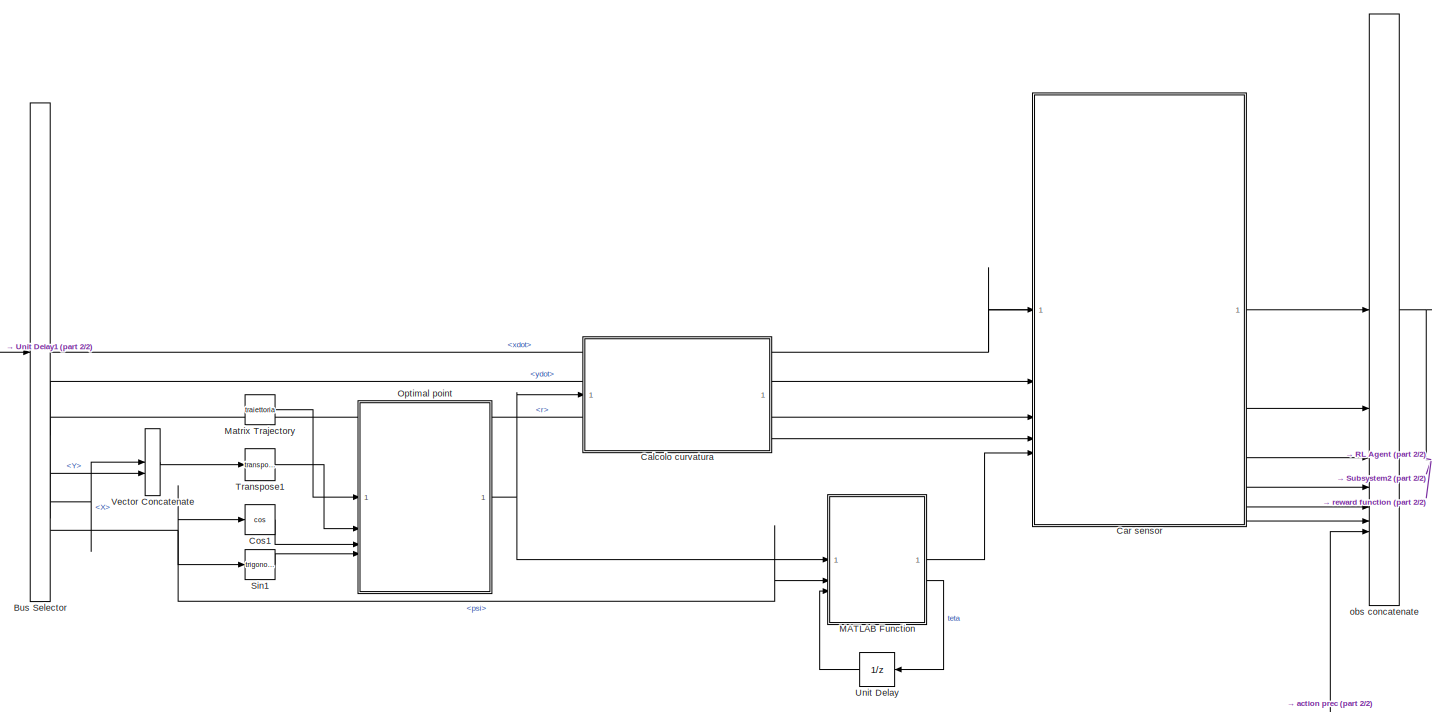
[diagram: root canvas - part 1/2, left side, full height]
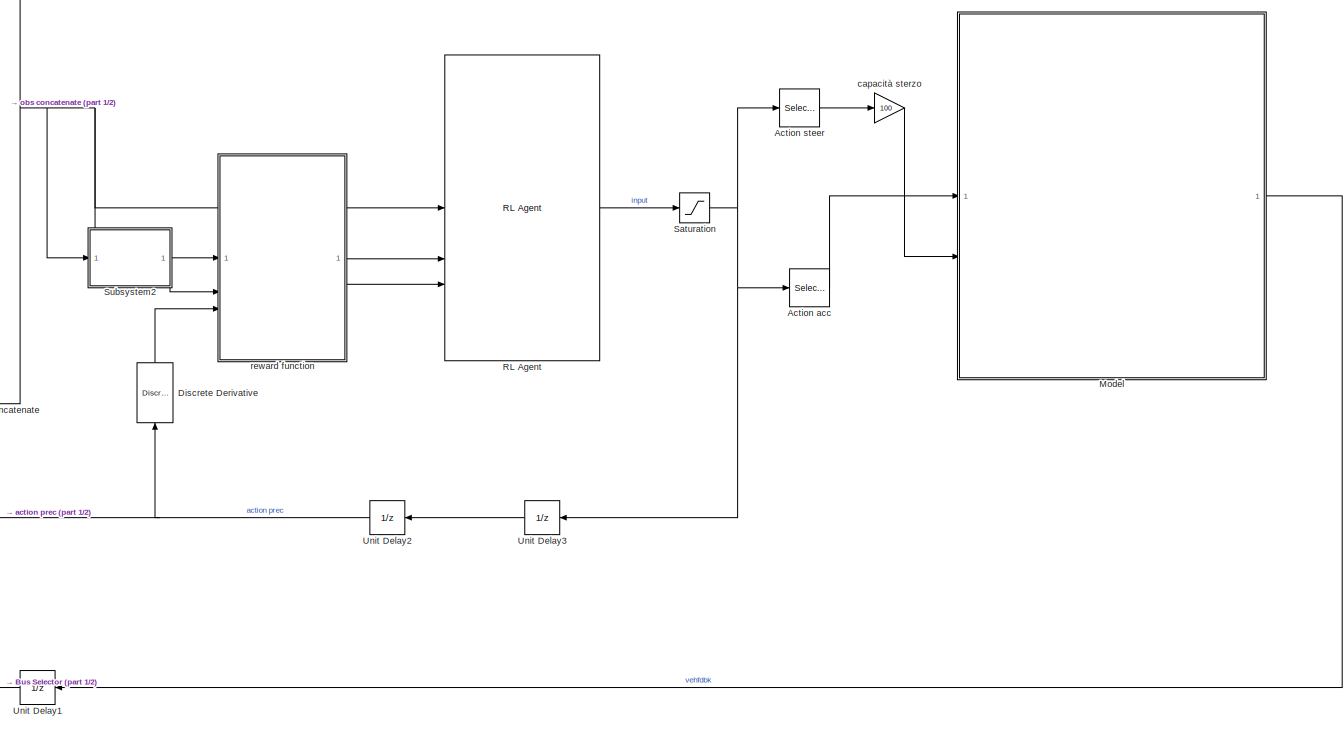
[diagram: root canvas - part 2/2, right side, full height]
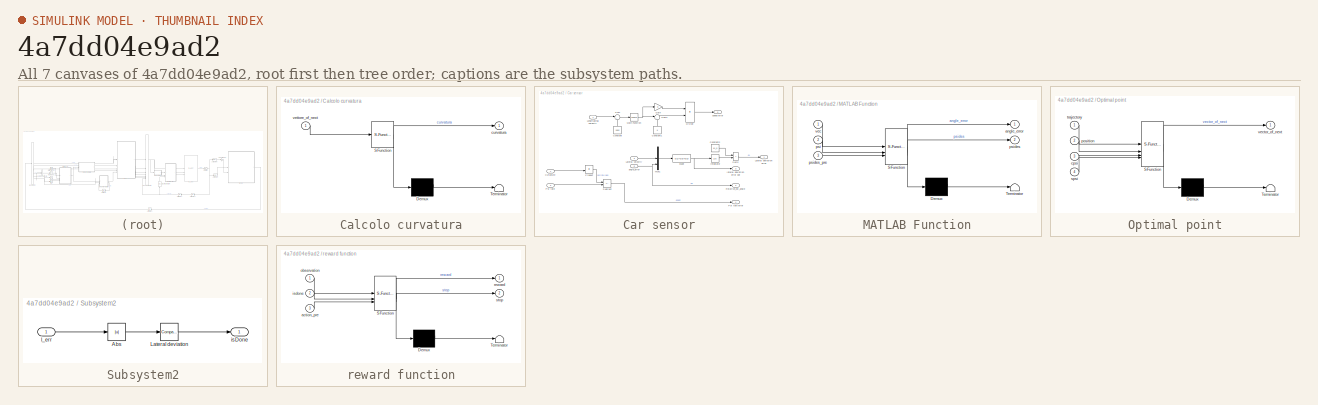
[diagram: thumbnail index - all 7 canvases of the model, root first then tree order]
MODEL slx_4a7dd04e9ad2
KIND model
CONFIG AbsTol = auto
CONFIG EnableMultiTasking = off
CONFIG FixedStep = auto
CONFIG MaxStep = auto
CONFIG MinStep = auto
CONFIG RelTol = 1e-3
CONFIG SampleTimeConstraint = Unconstrained
CONFIG SolverName = FixedStepAuto
CONFIG StartTime = 0.0
CONFIG StopTime = inf
BLOCK [Selector] Action acc
  IndexOptions = Index vector (dialog)
  Indices = 2
  InputPortWidth = 2
  OutputSizes = 1
BLOCK [Selector] Action steer
  IndexOptions = Index vector (dialog)
  Indices = 1
  InputPortWidth = 2
  OutputSizes = 1
BLOCK [BusSelector] Bus Selector
  OutputSignals = BdyFrm.Cg.Vel.xdot,BdyFrm.Cg.Vel.ydot,BdyFrm.Cg.AngVel.r,InertFrm.Cg.Disp.X,InertFrm.Cg.Disp.Y,InertFrm.Cg.Ang.psi
BLOCK [SubSystem] Calcolo curvatura
  ErrorFcn = Stateflow.Translate.translate
  LibrarySourceBlock = simulink/User-Defined\nFunctions/MATLAB Function
  PermitHierarchicalResolution = ExplicitOnly
  SFBlockType = MATLAB Function
  TreatAsAtomicUnit = on
BLOCK [Demux] Calcolo curvatura/ Demux 
  Outputs = 1
BLOCK [S-Function] Calcolo curvatura/ SFunction 
  EnableBusSupport = on
  FunctionName = sf_sfun
  PortCounts = [1 2]
  SFcnIsStateOwnerBlock = off
  SFunctionDeploymentMode = off
  Tag = Stateflow S-Function 7
BLOCK [Terminator] Calcolo curvatura/ Terminator 
BLOCK [Outport] Calcolo curvatura/curvatura
BLOCK [Inport] Calcolo curvatura/vettore_of_next
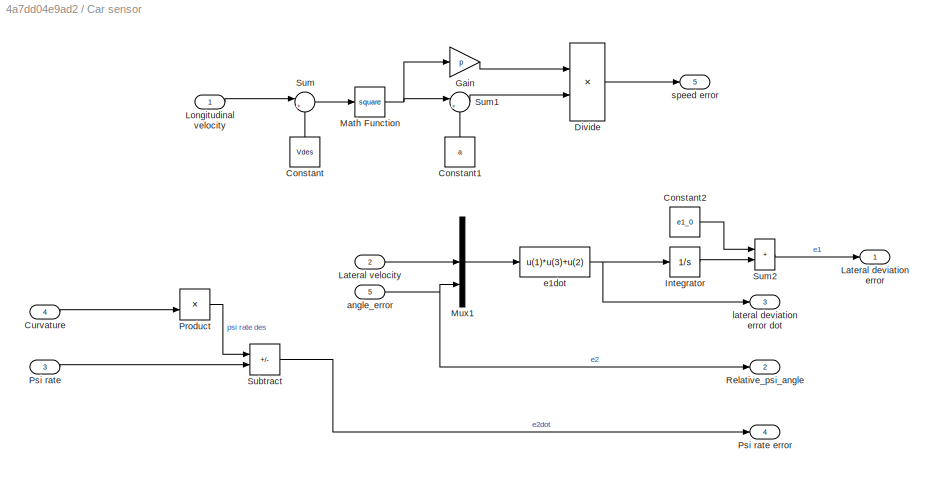
BLOCK [SubSystem] Car sensor
BLOCK [Constant] Car sensor/Constant
  NameLocation = right
  Value = Vdes
BLOCK [Constant] Car sensor/Constant1
  NameLocation = right
  Value = a
BLOCK [Constant] Car sensor/Constant2
  Value = e1_0
BLOCK [Inport] Car sensor/Curvature
  Port = 4
BLOCK [Product] Car sensor/Divide
  Inputs = */
BLOCK [Gain] Car sensor/Gain
  Gain = p
BLOCK [Integrator] Car sensor/Integrator
BLOCK [Outport] Car sensor/Lateral deviation error
  VectorParamsAs1DForOutWhenUnconnected = off
BLOCK [Inport] Car sensor/Lateral velocity
  Port = 2
BLOCK [Inport] Car sensor/Longitudinal velocity
BLOCK [Math] Car sensor/Math Function
  Operator = square
BLOCK [Mux] Car sensor/Mux1
  DisplayOption = bar
  Inputs = [1 1 1]
BLOCK [Product] Car sensor/Product
BLOCK [Inport] Car sensor/Psi rate
  Port = 3
BLOCK [Outport] Car sensor/Psi rate error
  Port = 4
  VectorParamsAs1DForOutWhenUnconnected = off
BLOCK [Outport] Car sensor/Relative_psi_angle
  Port = 2
BLOCK [Sum] Car sensor/Subtract
  IconShape = rectangular
  Inputs = -+
BLOCK [Sum] Car sensor/Sum
  Inputs = |+-
BLOCK [Sum] Car sensor/Sum1
  Inputs = |++
BLOCK [Sum] Car sensor/Sum2
  IconShape = rectangular
BLOCK [Inport] Car sensor/angle_error
  Port = 5
BLOCK [Fcn] Car sensor/e1dot
  Expr = u(1)*u(3)+u(2)
BLOCK [Outport] Car sensor/lateral deviation error dot
  Port = 3
  VectorParamsAs1DForOutWhenUnconnected = off
BLOCK [Outport] Car sensor/speed error
  Port = 5
BLOCK [Trigonometry] Cos1
  Operator = cos
BLOCK [Reference] Discrete Derivative  REF=simulink/Discrete/Discrete Derivative
  NameLocation = left
  SourceBlock = simulink/Discrete/Discrete Derivative
  SourceType = Discrete Derivative
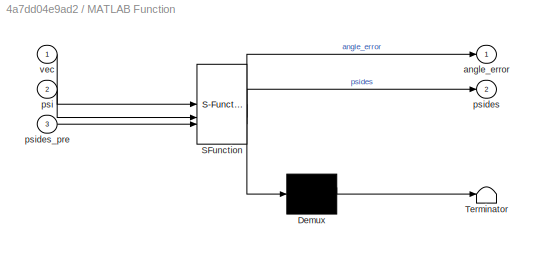
BLOCK [SubSystem] MATLAB Function
  ErrorFcn = Stateflow.Translate.translate
  LibrarySourceBlock = simulink/User-Defined\nFunctions/MATLAB Function
  PermitHierarchicalResolution = ExplicitOnly
  SFBlockType = MATLAB Function
  TreatAsAtomicUnit = on
BLOCK [Demux] MATLAB Function/ Demux 
  Outputs = 1
BLOCK [S-Function] MATLAB Function/ SFunction 
  EnableBusSupport = on
  FunctionName = sf_sfun
  PortCounts = [3 3]
  SFcnIsStateOwnerBlock = off
  SFunctionDeploymentMode = off
  Tag = Stateflow S-Function 1
BLOCK [Terminator] MATLAB Function/ Terminator 
BLOCK [Outport] MATLAB Function/angle_error
BLOCK [Inport] MATLAB Function/psi
  Port = 2
BLOCK [Outport] MATLAB Function/psides
  Port = 2
BLOCK [Inport] MATLAB Function/psides_pre
  Port = 3
BLOCK [Inport] MATLAB Function/vec
BLOCK [Constant] Matrix Trajectory
  SampleTime = 60
  Value = traiettoria
BLOCK [ModelReference] Model
  ModelNameDialog = Current_Macchina3DOF.slx
  ModelReferenceVersion = 1.71
  PortSchema = {"entries":[{"content":{"sides":[{"content":{"connectorIds":["In2","In1"]},"type":"ConnectorPlacement.EquallySpacedRectSide","uuid":"b5a44853-6584-4a50-847d-9a0b1c5ea9ac"},{"content":{"connectorIds":["Out1"],"side":"RIGHT"},"type":"ConnectorPlacement.EquallySpacedRectSide","uuid":"bfcb6c88-1d93-4f70-bf16-2c719fa247ba"},{"content":{"side":"TOP"},"type":"ConnectorPlacement.EquallySpacedRectSide","uu...<+228ch>
BLOCK [SubSystem] Optimal point
  ErrorFcn = Stateflow.Translate.translate
  LibrarySourceBlock = simulink/User-Defined\nFunctions/MATLAB Function
  PermitHierarchicalResolution = ExplicitOnly
  SFBlockType = MATLAB Function
  TreatAsAtomicUnit = on
BLOCK [Demux] Optimal point/ Demux 
  Outputs = 1
BLOCK [S-Function] Optimal point/ SFunction 
  EnableBusSupport = on
  FunctionName = sf_sfun
  PortCounts = [4 2]
  SFcnIsStateOwnerBlock = off
  SFunctionDeploymentMode = off
  Tag = Stateflow S-Function 3
BLOCK [Terminator] Optimal point/ Terminator 
BLOCK [Inport] Optimal point/cpsi
  Port = 3
BLOCK [Inport] Optimal point/position
  Port = 2
BLOCK [Inport] Optimal point/spsi
  Port = 4
BLOCK [Inport] Optimal point/trajectory
BLOCK [Outport] Optimal point/vector_of_next
BLOCK [Reference] RL Agent  REF=rllib/RL Agent
  SourceBlock = rllib/RL Agent
  SourceType = RL Agent
BLOCK [Saturate] Saturation
  LowerLimit = -1
  UpperLimit = 1
BLOCK [Trigonometry] Sin1
BLOCK [SubSystem] Subsystem2
BLOCK [Abs] Subsystem2/Abs
  SaturateOnIntegerOverflow = off
BLOCK [Reference] Subsystem2/Lateral deviation  REF=simulink/Logic and Bit
Operations/Compare
To Constant
  SourceBlock = simulink/Logic and Bit\nOperations/Compare\nTo Constant
  SourceType = Compare To Constant
BLOCK [Outport] Subsystem2/isDone
  VectorParamsAs1DForOutWhenUnconnected = off
BLOCK [Inport] Subsystem2/l_err
BLOCK [Math] Transpose1
  Operator = transpose
BLOCK [UnitDelay] Unit Delay
  HasFrameUpgradeWarning = on
  SampleTime = -1
BLOCK [UnitDelay] Unit Delay1
  HasFrameUpgradeWarning = on
  SampleTime = -1
BLOCK [UnitDelay] Unit Delay2
  HasFrameUpgradeWarning = on
  SampleTime = -1
BLOCK [UnitDelay] Unit Delay3
  HasFrameUpgradeWarning = on
  SampleTime = -1
BLOCK [Concatenate] Vector Concatenate
BLOCK [Gain] capacità sterzo
  Gain = 100
BLOCK [Concatenate] obs concatenate
  NumInputs = 7
BLOCK [SubSystem] reward function
  ErrorFcn = Stateflow.Translate.translate
  PermitHierarchicalResolution = ExplicitOnly
  SFBlockType = MATLAB Function
  TreatAsAtomicUnit = on
BLOCK [Demux] reward function/ Demux 
  Outputs = 1
BLOCK [S-Function] reward function/ SFunction 
  EnableBusSupport = on
  FunctionName = sf_sfun
  PortCounts = [3 3]
  SFcnIsStateOwnerBlock = off
  SFunctionDeploymentMode = off
  Tag = Stateflow S-Function 2
BLOCK [Terminator] reward function/ Terminator 
BLOCK [Inport] reward function/action_pre
  Port = 3
BLOCK [Inport] reward function/isdone
  Port = 2
BLOCK [Inport] reward function/observation
BLOCK [Outport] reward function/reward
BLOCK [Outport] reward function/stop
  Port = 2
LINE Action acc:1 -> Model:1
LINE Action steer:1 -> capacità sterzo:1
NET Bus Selector:1 -> Car sensor:1, obs concatenate:1
LINE Bus Selector:2 -> Car sensor:2
LINE Bus Selector:3 -> Car sensor:3
LINE Bus Selector:4 -> Vector Concatenate:1
LINE Bus Selector:5 -> Vector Concatenate:2
NET Bus Selector:6 -> Cos1:1, MATLAB Function:2, Sin1:1
LINE Calcolo curvatura:1 -> Car sensor:4
LINE Car sensor/Constant1:1 -> Car sensor/Sum1:2
LINE Car sensor/Constant2:1 -> Car sensor/Sum2:1
LINE Car sensor/Constant:1 -> Car sensor/Sum:2
LINE Car sensor/Curvature:1 -> Car sensor/Product:2
LINE Car sensor/Divide:1 -> Car sensor/speed error:1
LINE Car sensor/Gain:1 -> Car sensor/Divide:1
LINE Car sensor/Integrator:1 -> Car sensor/Sum2:2
LINE Car sensor/Lateral velocity:1 -> Car sensor/Mux1:2
LINE Car sensor/Longitudinal velocity:1 -> Car sensor/Sum:1
NET Car sensor/Math Function:1 -> Car sensor/Gain:1, Car sensor/Sum1:1
LINE Car sensor/Mux1:1 -> Car sensor/e1dot:1
LINE Car sensor/Product:1 -> Car sensor/Subtract:1
LINE Car sensor/Psi rate:1 -> Car sensor/Subtract:2
LINE Car sensor/Subtract:1 -> Car sensor/Psi rate error:1
LINE Car sensor/Sum1:1 -> Car sensor/Divide:2
LINE Car sensor/Sum2:1 -> Car sensor/Lateral deviation error:1
LINE Car sensor/Sum:1 -> Car sensor/Math Function:1
NET Car sensor/angle_error:1 -> Car sensor/Mux1:3, Car sensor/Relative_psi_angle:1
NET Car sensor/e1dot:1 -> Car sensor/Integrator:1, Car sensor/lateral deviation error dot:1
LINE Car sensor:1 -> obs concatenate:2
LINE Car sensor:2 -> obs concatenate:3
LINE Car sensor:3 -> obs concatenate:4
LINE Car sensor:4 -> obs concatenate:5
LINE Car sensor:5 -> obs concatenate:6
LINE Cos1:1 -> Optimal point:3
LINE Discrete Derivative:1 -> reward function:3
LINE MATLAB Function:1 -> Car sensor:5
LINE MATLAB Function:2 -> Unit Delay:1
LINE Matrix Trajectory:1 -> Optimal point:1
LINE Model:1 -> Unit Delay1:1
NET Optimal point:1 -> Calcolo curvatura:1, MATLAB Function:1
LINE RL Agent:1 -> Saturation:1
NET Saturation:1 -> Action acc:1, Action steer:1, Unit Delay3:1
LINE Sin1:1 -> Optimal point:4
LINE Subsystem2/Abs:1 -> Subsystem2/Lateral deviation:1
LINE Subsystem2/Lateral deviation:1 -> Subsystem2/isDone:1
LINE Subsystem2/l_err:1 -> Subsystem2/Abs:1
LINE Subsystem2:1 -> reward function:2
LINE Transpose1:1 -> Optimal point:2
LINE Unit Delay1:1 -> Bus Selector:1
NET Unit Delay2:1 -> Discrete Derivative:1, obs concatenate:7
LINE Unit Delay3:1 -> Unit Delay2:1
LINE Unit Delay:1 -> MATLAB Function:3
LINE Vector Concatenate:1 -> Transpose1:1
LINE capacità sterzo:1 -> Model:2
NET obs concatenate:1 -> RL Agent:1, Subsystem2:1, reward function:1
LINE reward function:1 -> RL Agent:2
LINE reward function:2 -> RL Agent:3
note: NET lines group one-source signal fan-out (src -> all destinations, sorted); 1:1 wires keep LINE
CHART MATLAB Function states=1 transitions=1
  STATE_LABEL 'eML_blk_kernel()'
  STATE_LABEL "SCRIPT:\nfunction [angle_error,psides] = calc_angle_error(vec,psi, psides_pre)\n    x1=vec(1,1);\n    y1=vec(1,2);\n    x3=vec(3,1);\n    y3=vec(3,2);\n    psides=atan2((y3-y1),(x3-x1));\n\n\n     if(abs(tetapre-psides)>pi/4 && abs(tetapre-psides)<1.1*pi)%ATTENZIONE: PROVVISORIO PER RISOLVERE IL PROBLEMA DELL'INCROCIO DI TRAIETTORIE\n         psides=tetapre;\n     end\n\n\n\n    angle_error=psi-psides;\n    if an...<+128ch>"
CHART reward function states=1 transitions=1
  STATE_LABEL 'eML_blk_kernel()'
  STATE_LABEL 'SCRIPT:\nfunction [reward, stop] = reward(observation, isdone, action_pre)\n    % Input:\n    %   observation: vector containing relevant state information\n    %   isdone: flag indicating whether the episode is finished\n    %   action: vector representing the action taken\n    %   action_d: vector representing the action derivatives\n    % Output:\n    %   speed_error: computed speed error based on the ...<+608ch>'
CHART Optimal point states=1 transitions=1
  STATE_LABEL 'eML_blk_kernel()'
  STATE_LABEL 'SCRIPT:\nfunction vector_of_next  = optimalpoint(trajectory, position, cpsi, spsi)\n    % Input:\n    %   trajectory: Nx2 matrix representing the trajectory points\n    %   position: 1x2 row vector representing the current position (xy)\n    %   cpsi, spsi: components of the velocity direction\n    % Output:\n    %   point: 1x2 row vector representing the optimal point on the trajectory\n    %   vector_of...<+1563ch>'
CHART Calcolo curvatura states=1 transitions=1
  STATE_LABEL 'eML_blk_kernel()'
  STATE_LABEL 'SCRIPT:\nfunction curvatura = calcola_curvatura(vettore_of_next)\n    % Input:\n    %   vettore_of_next: 3x2 matrix containing three points on the curve\n    % Output:\n    %   curvatura: vector containing the calculated curvature values\n\n    % Extract x and y coordinates from the curve points\n    x = vettore_of_next(:, 1);\n    y = vettore_of_next(:, 2);\n\n    % Calculate the first derivatives of x and ...<+558ch>'
CHART  states=0 transitions=0
CHART  states=0 transitions=0
CHART  states=0 transitions=0
CHART  states=0 transitions=0
